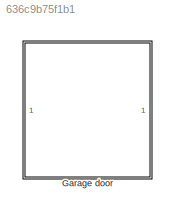
MODEL slx_636c9b75f1b1
KIND model
CONFIG AbsTol = auto
CONFIG EnableMultiTasking = off
CONFIG FixedStep = auto
CONFIG MaxStep = auto
CONFIG MinStep = auto
CONFIG RelTol = 1e-3
CONFIG SampleTimeConstraint = Unconstrained
CONFIG Solver = VariableStepAuto
CONFIG SolverName = VariableStepAuto
CONFIG StartTime = 0.0
CONFIG StopTime = 10.0
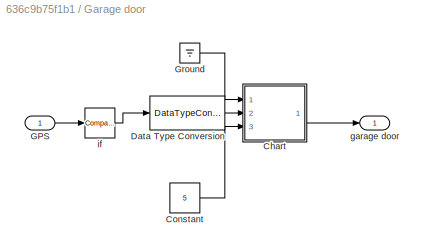
BLOCK [SubSystem] Garage door
  Ports = [1, 1]
  RequestExecContextInheritance = off
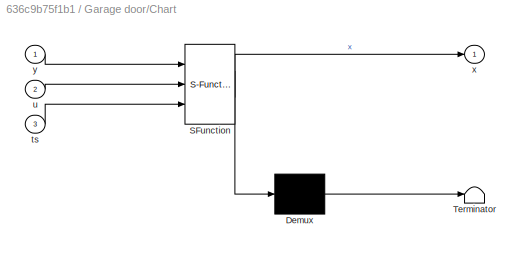
BLOCK [SubSystem] Garage door/Chart
  ErrorFcn = Stateflow.Translate.translate
  PermitHierarchicalResolution = ExplicitOnly
  Ports = [3, 1]
  RequestExecContextInheritance = off
  SFBlockType = Chart
  TreatAsAtomicUnit = on
BLOCK [Demux] Garage door/Chart/ Demux 
  Outputs = 1
  Ports = [1, 1]
BLOCK [S-Function] Garage door/Chart/ SFunction 
  EnableBusSupport = on
  FunctionName = sf_sfun
  PortCounts = [3 2]
  Ports = [3, 2]
  SFcnIsStateOwnerBlock = off
  SFunctionDeploymentMode = off
  Tag = Stateflow S-Function garage_door 10
BLOCK [Terminator] Garage door/Chart/ Terminator 
BLOCK [Inport] Garage door/Chart/ts
  IconDisplay = Port number
  Port = 3
BLOCK [Inport] Garage door/Chart/u
  IconDisplay = Port number
  Port = 2
BLOCK [Outport] Garage door/Chart/x
  IconDisplay = Port number
BLOCK [Inport] Garage door/Chart/y
  IconDisplay = Port number
BLOCK [Constant] Garage door/Constant
  Value = 5
BLOCK [DataTypeConversion] Garage door/Data Type Conversion
  RndMeth = Floor
  SaturateOnIntegerOverflow = off
BLOCK [Inport] Garage door/GPS
  IconDisplay = Port number
BLOCK [Ground] Garage door/Ground
BLOCK [Outport] Garage door/garage door
  IconDisplay = Port number
BLOCK [Reference] Garage door/if  REF=simulink/Logic and Bit
Operations/Compare
To Constant
  Ports = [1, 1]
  SourceBlock = simulink/Logic and Bit\nOperations/Compare\nTo Constant
  SourceProductBaseCode = SL
  SourceProductName = Simulink
  SourceType = Compare To Constant
LINE Garage door/Chart:1 -> Garage door/garage door:1
LINE Garage door/Constant:1 -> Garage door/Chart:3
LINE Garage door/Data Type Conversion:1 -> Garage door/Chart:2
LINE Garage door/GPS:1 -> Garage door/if:1
LINE Garage door/Ground:1 -> Garage door/Chart:1
LINE Garage door/if:1 -> Garage door/Data Type Conversion:1
CHART Garage door/Chart states=3 transitions=7
  STATE_LABEL 'Idle\nx=0;\nt1=ts/timeStep;'
  STATE_LABEL 'State1\nx=1;'
  STATE_LABEL 'Wait'
